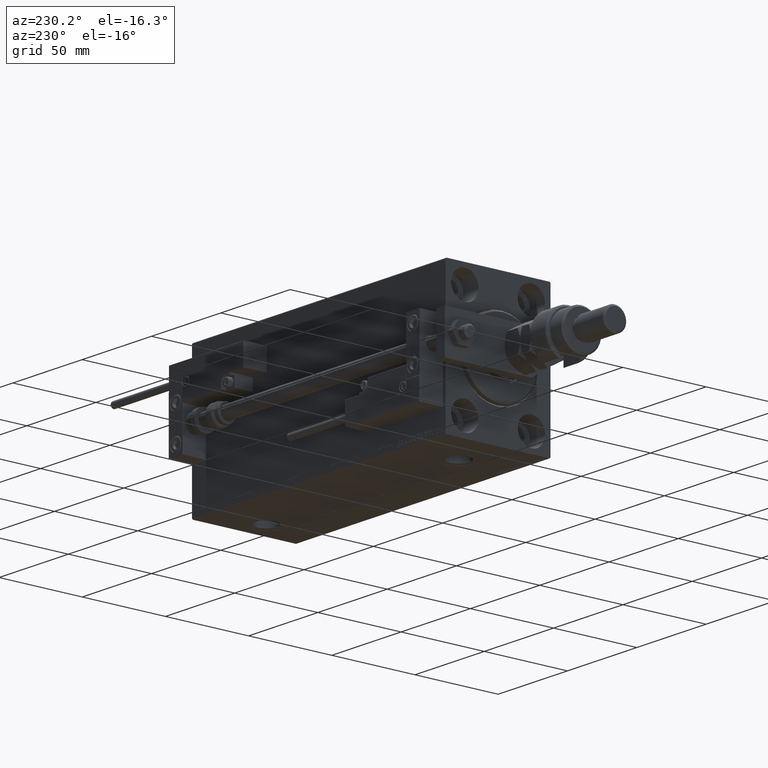
[diagram: clean part render]
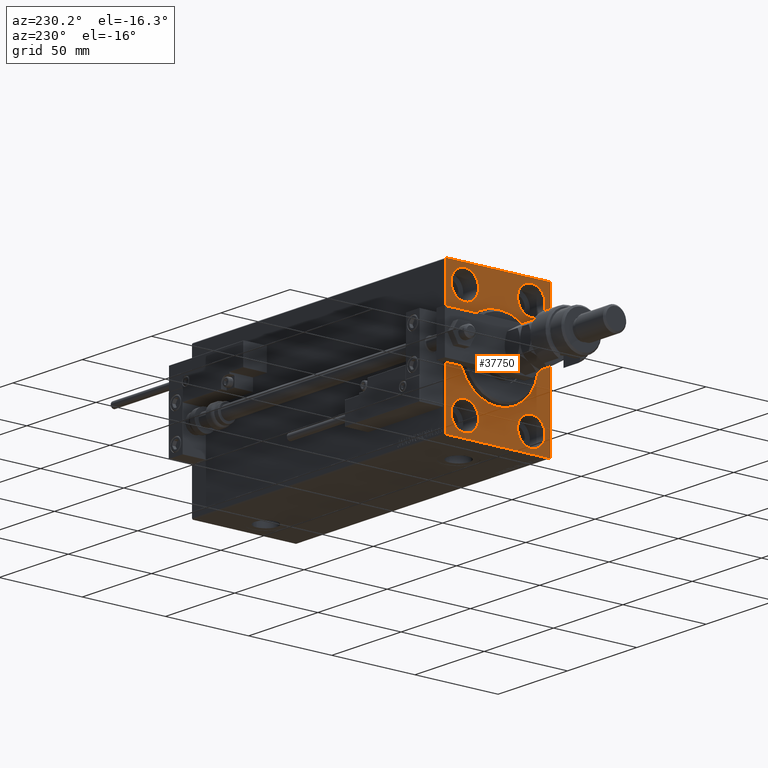
[diagram: same view with one face highlighted and labeled with its STEP entity id]
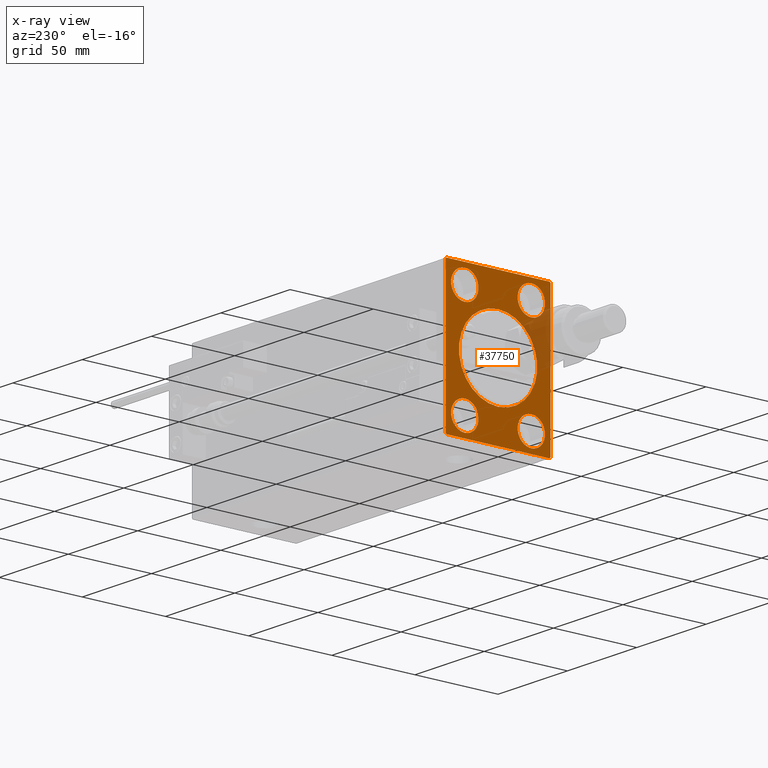
[diagram: x-ray of the same camera — body ghosted, the highlighted face saturated]
A machine part, auxiliary view. The second image highlights one B-rep face of the part: STEP entity #37750.
The next image is the same camera in x-ray: the body ghosted, the highlighted face saturated — about 10% of this face is hidden behind the body in this view.
In plain terms, the highlighted planar face has unit normal (1, 0, 0).
Its self-contained STEP definition (entity closure, byte-faithful):
#92 = VECTOR ( 'NONE', #40902, 1000.000000000000000 ) ;
#283 = VECTOR ( 'NONE', #37765, 1000.000000000000114 ) ;
#793 = ORIENTED_EDGE ( 'NONE', *, *, #31670, .F. ) ;
#910 = DIRECTION ( 'NONE',  ( -1.000000000000000000, 0.000000000000000000, 0.000000000000000000 ) ) ;
#949 = FACE_OUTER_BOUND ( 'NONE', #48714, .T. ) ;
#1063 = DIRECTION ( 'NONE',  ( 0.000000000000000000, 0.000000000000000000, -1.000000000000000000 ) ) ;
#1233 = DIRECTION ( 'NONE',  ( -0.000000000000000000, -0.7071067811865474617, 0.7071067811865474617 ) ) ;
#1382 = EDGE_CURVE ( 'NONE', #23386, #27148, #41391, .T. ) ;
#1387 = CARTESIAN_POINT ( 'NONE',  ( 0.000000000000000000, 20.00000000000000355, 31.50000000000000000 ) ) ;
#1488 = CARTESIAN_POINT ( 'NONE',  ( 0.000000000000000000, -19.99999999999999645, 39.74999999999999289 ) ) ;
#2268 = EDGE_LOOP ( 'NONE', ( #4423, #8108 ) ) ;
#2894 = DIRECTION ( 'NONE',  ( 0.000000000000000000, -1.632680918566406300E-16, 1.000000000000000000 ) ) ;
#3462 = CARTESIAN_POINT ( 'NONE',  ( 0.000000000000000000, -20.00000000000000355, -39.74999999999999289 ) ) ;
#3475 = EDGE_CURVE ( 'NONE', #37239, #19445, #28996, .T. ) ;
#4423 = ORIENTED_EDGE ( 'NONE', *, *, #53782, .F. ) ;
#4698 = ORIENTED_EDGE ( 'NONE', *, *, #44167, .T. ) ;
#5009 = CARTESIAN_POINT ( 'NONE',  ( 0.000000000000000000, -20.00000000000000355, -31.49999999999999289 ) ) ;
#5052 = FACE_BOUND ( 'NONE', #25854, .T. ) ;
#5221 = ORIENTED_EDGE ( 'NONE', *, *, #53576, .F. ) ;
#6408 = CARTESIAN_POINT ( 'NONE',  ( 0.000000000000000000, 31.00000000000001421, -42.50000000000000711 ) ) ;
#6584 = AXIS2_PLACEMENT_3D ( 'NONE', #46161, #51393, #25837 ) ;
#6972 = EDGE_CURVE ( 'NONE', #37239, #50808, #22954, .T. ) ;
#7772 = ORIENTED_EDGE ( 'NONE', *, *, #3475, .T. ) ;
#8108 = ORIENTED_EDGE ( 'NONE', *, *, #21048, .F. ) ;
#8224 = DIRECTION ( 'NONE',  ( 0.000000000000000000, 0.000000000000000000, 1.000000000000000000 ) ) ;
#8335 = AXIS2_PLACEMENT_3D ( 'NONE', #39364, #47342, #43491 ) ;
#8356 = VERTEX_POINT ( 'NONE', #19050 ) ;
#8367 = AXIS2_PLACEMENT_3D ( 'NONE', #44290, #23412, #19266 ) ;
#8652 = AXIS2_PLACEMENT_3D ( 'NONE', #14486, #9834, #1063 ) ;
#8916 = FACE_BOUND ( 'NONE', #34210, .T. ) ;
#9255 = CARTESIAN_POINT ( 'NONE',  ( 0.000000000000000000, -31.00000000000000000, -42.50000000000000711 ) ) ;
#9452 = EDGE_CURVE ( 'NONE', #37679, #17366, #13604, .T. ) ;
#9678 = DIRECTION ( 'NONE',  ( 0.000000000000000000, 0.000000000000000000, 1.000000000000000000 ) ) ;
#9834 = DIRECTION ( 'NONE',  ( 1.000000000000000000, 0.000000000000000000, 0.000000000000000000 ) ) ;
#10287 = ORIENTED_EDGE ( 'NONE', *, *, #26102, .F. ) ;
#10377 = CARTESIAN_POINT ( 'NONE',  ( 0.000000000000000000, 31.00000000000002842, 42.50000000000000711 ) ) ;
#11133 = EDGE_CURVE ( 'NONE', #51376, #36875, #34747, .T. ) ;
#11348 = VECTOR ( 'NONE', #40956, 1000.000000000000114 ) ;
#11449 = DIRECTION ( 'NONE',  ( 0.000000000000000000, -1.000000000000000000, -2.202823461557850341E-16 ) ) ;
#11648 = CARTESIAN_POINT ( 'NONE',  ( 0.000000000000000000, 20.00000000000000355, 31.50000000000000000 ) ) ;
#11698 = EDGE_CURVE ( 'NONE', #8356, #12197, #34677, .T. ) ;
#12059 = CARTESIAN_POINT ( 'NONE',  ( 0.000000000000000000, -31.50000000000000000, 41.99999999999996447 ) ) ;
#12197 = VERTEX_POINT ( 'NONE', #3462 ) ;
#12219 = ORIENTED_EDGE ( 'NONE', *, *, #27251, .T. ) ;
#13116 = DIRECTION ( 'NONE',  ( -1.000000000000000000, 0.000000000000000000, 0.000000000000000000 ) ) ;
#13297 = FACE_BOUND ( 'NONE', #2268, .T. ) ;
#13604 = CIRCLE ( 'NONE', #8367, 8.250000000000000000 ) ;
#13836 = DIRECTION ( 'NONE',  ( 0.000000000000000000, 0.000000000000000000, -1.000000000000000000 ) ) ;
#14486 = CARTESIAN_POINT ( 'NONE',  ( 0.000000000000000000, 0.000000000000000000, 0.000000000000000000 ) ) ;
#15526 = CARTESIAN_POINT ( 'NONE',  ( 0.000000000000000000, 19.99999999999999645, -39.74999999999999289 ) ) ;
#15605 = LINE ( 'NONE', #28557, #92 ) ;
#16879 = CARTESIAN_POINT ( 'NONE',  ( 0.000000000000000000, 20.00000000000000355, 39.74999999999999289 ) ) ;
#17366 = VERTEX_POINT ( 'NONE', #18724 ) ;
#17379 = EDGE_CURVE ( 'NONE', #27497, #35729, #32034, .T. ) ;
#17406 = EDGE_LOOP ( 'NONE', ( #28103, #35737 ) ) ;
#18046 = DIRECTION ( 'NONE',  ( -1.000000000000000000, 0.000000000000000000, 0.000000000000000000 ) ) ;
#18724 = CARTESIAN_POINT ( 'NONE',  ( 0.000000000000000000, 19.99999999999999645, -23.24999999999999289 ) ) ;
#18893 = CIRCLE ( 'NONE', #26811, 8.249999999999992895 ) ;
#18973 = CIRCLE ( 'NONE', #25915, 8.249999999999992895 ) ;
#19050 = CARTESIAN_POINT ( 'NONE',  ( 0.000000000000000000, -20.00000000000000355, -23.24999999999999289 ) ) ;
#19266 = DIRECTION ( 'NONE',  ( 0.000000000000000000, 0.000000000000000000, 1.000000000000000000 ) ) ;
#19390 = VERTEX_POINT ( 'NONE', #1488 ) ;
#19445 = VERTEX_POINT ( 'NONE', #6408 ) ;
#19901 = VERTEX_POINT ( 'NONE', #26910 ) ;
#21048 = EDGE_CURVE ( 'NONE', #34445, #19390, #18973, .T. ) ;
#21114 = CARTESIAN_POINT ( 'NONE',  ( 0.000000000000000000, -31.50000000000000000, 42.49999999999999289 ) ) ;
#21671 = CARTESIAN_POINT ( 'NONE',  ( 0.000000000000000000, 20.00000000000000355, 23.25000000000000355 ) ) ;
#22045 = AXIS2_PLACEMENT_3D ( 'NONE', #22173, #18046, #52135 ) ;
#22173 = CARTESIAN_POINT ( 'NONE',  ( 0.000000000000000000, -19.99999999999999645, 31.50000000000000000 ) ) ;
#22221 = EDGE_CURVE ( 'NONE', #27148, #23386, #18893, .T. ) ;
#22527 = DIRECTION ( 'NONE',  ( 0.000000000000000000, 0.000000000000000000, 1.000000000000000000 ) ) ;
#22903 = ORIENTED_EDGE ( 'NONE', *, *, #6972, .F. ) ;
#22954 = LINE ( 'NONE', #44386, #25826 ) ;
#23386 = VERTEX_POINT ( 'NONE', #16879 ) ;
#23412 = DIRECTION ( 'NONE',  ( -1.000000000000000000, 0.000000000000000000, 0.000000000000000000 ) ) ;
#23692 = ORIENTED_EDGE ( 'NONE', *, *, #35990, .F. ) ;
#24376 = VECTOR ( 'NONE', #27153, 1000.000000000000114 ) ;
#24422 = CIRCLE ( 'NONE', #8652, 23.49999999999996092 ) ;
#25826 = VECTOR ( 'NONE', #2894, 1000.000000000000000 ) ;
#25837 = DIRECTION ( 'NONE',  ( 0.000000000000000000, 0.000000000000000000, 1.000000000000000000 ) ) ;
#25854 = EDGE_LOOP ( 'NONE', ( #40762, #23692 ) ) ;
#25915 = AXIS2_PLACEMENT_3D ( 'NONE', #54378, #13116, #29100 ) ;
#26102 = EDGE_CURVE ( 'NONE', #17366, #37679, #31369, .T. ) ;
#26280 = EDGE_CURVE ( 'NONE', #47519, #36875, #33505, .T. ) ;
#26811 = AXIS2_PLACEMENT_3D ( 'NONE', #1387, #51683, #22527 ) ;
#26910 = CARTESIAN_POINT ( 'NONE',  ( 0.000000000000000000, 31.00000000000002842, 42.50000000000000711 ) ) ;
#27148 = VERTEX_POINT ( 'NONE', #21671 ) ;
#27153 = DIRECTION ( 'NONE',  ( -0.000000000000000000, 0.7071067811865474617, -0.7071067811865474617 ) ) ;
#27251 = EDGE_CURVE ( 'NONE', #19901, #50808, #39247, .T. ) ;
#27289 = CARTESIAN_POINT ( 'NONE',  ( 0.000000000000000000, -30.99999999999997158, 42.49999999999999289 ) ) ;
#27398 = LINE ( 'NONE', #44965, #41241 ) ;
#27497 = VERTEX_POINT ( 'NONE', #52111 ) ;
#28103 = ORIENTED_EDGE ( 'NONE', *, *, #1382, .F. ) ;
#28557 = CARTESIAN_POINT ( 'NONE',  ( 0.000000000000000000, -31.50000000000000000, -42.50000000000000711 ) ) ;
#28996 = LINE ( 'NONE', #49341, #283 ) ;
#29100 = DIRECTION ( 'NONE',  ( 0.000000000000000000, 0.000000000000000000, 1.000000000000000000 ) ) ;
#30504 = VECTOR ( 'NONE', #34579, 1000.000000000000000 ) ;
#30727 = CIRCLE ( 'NONE', #40355, 8.250000000000000000 ) ;
#31369 = CIRCLE ( 'NONE', #34875, 8.250000000000000000 ) ;
#31670 = EDGE_CURVE ( 'NONE', #19901, #40950, #27398, .T. ) ;
#32015 = VECTOR ( 'NONE', #1233, 1000.000000000000114 ) ;
#32034 = CIRCLE ( 'NONE', #8335, 23.49999999999996092 ) ;
#33293 = EDGE_LOOP ( 'NONE', ( #10287, #37441 ) ) ;
#33478 = CIRCLE ( 'NONE', #22045, 8.249999999999992895 ) ;
#33505 = LINE ( 'NONE', #21114, #30504 ) ;
#33657 = CARTESIAN_POINT ( 'NONE',  ( 0.000000000000000000, -31.50000000000000000, -42.00000000000000711 ) ) ;
#33935 = CARTESIAN_POINT ( 'NONE',  ( 0.000000000000000000, 0.000000000000000000, 0.000000000000000000 ) ) ;
#34210 = EDGE_LOOP ( 'NONE', ( #48778, #4698 ) ) ;
#34445 = VERTEX_POINT ( 'NONE', #51324 ) ;
#34579 = DIRECTION ( 'NONE',  ( 0.000000000000000000, 0.000000000000000000, -1.000000000000000000 ) ) ;
#34677 = CIRCLE ( 'NONE', #6584, 8.250000000000000000 ) ;
#34740 = PLANE ( 'NONE',  #36043 ) ;
#34747 = LINE ( 'NONE', #42446, #32015 ) ;
#34875 = AXIS2_PLACEMENT_3D ( 'NONE', #41207, #41746, #8224 ) ;
#35729 = VERTEX_POINT ( 'NONE', #39962 ) ;
#35737 = ORIENTED_EDGE ( 'NONE', *, *, #22221, .F. ) ;
#35990 = EDGE_CURVE ( 'NONE', #12197, #8356, #30727, .T. ) ;
#36043 = AXIS2_PLACEMENT_3D ( 'NONE', #33935, #51522, #13836 ) ;
#36574 = ORIENTED_EDGE ( 'NONE', *, *, #50107, .T. ) ;
#36875 = VERTEX_POINT ( 'NONE', #33657 ) ;
#37239 = VERTEX_POINT ( 'NONE', #49703 ) ;
#37441 = ORIENTED_EDGE ( 'NONE', *, *, #9452, .F. ) ;
#37486 = ORIENTED_EDGE ( 'NONE', *, *, #11133, .T. ) ;
#37679 = VERTEX_POINT ( 'NONE', #15526 ) ;
#37750 = ADVANCED_FACE ( 'NONE', ( #8916, #38852, #13297, #50439, #5052, #949 ), #34740, .F. ) ;
#37765 = DIRECTION ( 'NONE',  ( 0.000000000000000000, -0.7071067811865474617, -0.7071067811865474617 ) ) ;
#38852 = FACE_BOUND ( 'NONE', #33293, .T. ) ;
#39247 = LINE ( 'NONE', #10377, #24376 ) ;
#39364 = CARTESIAN_POINT ( 'NONE',  ( 0.000000000000000000, 0.000000000000000000, 0.000000000000000000 ) ) ;
#39866 = CARTESIAN_POINT ( 'NONE',  ( 0.000000000000000000, -31.50000000000000000, 41.99999999999996447 ) ) ;
#39962 = CARTESIAN_POINT ( 'NONE',  ( 0.000000000000000000, 2.877919977996275587E-15, -23.49999999999996092 ) ) ;
#40355 = AXIS2_PLACEMENT_3D ( 'NONE', #5009, #910, #9678 ) ;
#40762 = ORIENTED_EDGE ( 'NONE', *, *, #11698, .F. ) ;
#40902 = DIRECTION ( 'NONE',  ( 0.000000000000000000, 1.000000000000000000, 0.000000000000000000 ) ) ;
#40950 = VERTEX_POINT ( 'NONE', #27289 ) ;
#40956 = DIRECTION ( 'NONE',  ( -0.000000000000000000, 0.7071067811865474617, 0.7071067811865474617 ) ) ;
#41207 = CARTESIAN_POINT ( 'NONE',  ( 0.000000000000000000, 19.99999999999999645, -31.49999999999999289 ) ) ;
#41241 = VECTOR ( 'NONE', #11449, 1000.000000000000000 ) ;
#41391 = CIRCLE ( 'NONE', #46639, 8.249999999999992895 ) ;
#41746 = DIRECTION ( 'NONE',  ( -1.000000000000000000, 0.000000000000000000, 0.000000000000000000 ) ) ;
#42446 = CARTESIAN_POINT ( 'NONE',  ( 0.000000000000000000, -31.00000000000000000, -42.50000000000000711 ) ) ;
#43491 = DIRECTION ( 'NONE',  ( 0.000000000000000000, 0.000000000000000000, -1.000000000000000000 ) ) ;
#44167 = EDGE_CURVE ( 'NONE', #35729, #27497, #24422, .T. ) ;
#44290 = CARTESIAN_POINT ( 'NONE',  ( 0.000000000000000000, 19.99999999999999645, -31.49999999999999289 ) ) ;
#44386 = CARTESIAN_POINT ( 'NONE',  ( 0.000000000000000000, 31.50000000000001421, -42.50000000000000711 ) ) ;
#44965 = CARTESIAN_POINT ( 'NONE',  ( 0.000000000000000000, 31.50000000000000000, 42.50000000000000711 ) ) ;
#46161 = CARTESIAN_POINT ( 'NONE',  ( 0.000000000000000000, -20.00000000000000355, -31.49999999999999289 ) ) ;
#46287 = CARTESIAN_POINT ( 'NONE',  ( 0.000000000000000000, 31.50000000000000000, 42.00000000000003553 ) ) ;
#46639 = AXIS2_PLACEMENT_3D ( 'NONE', #11648, #48759, #49033 ) ;
#47076 = ORIENTED_EDGE ( 'NONE', *, *, #26280, .F. ) ;
#47342 = DIRECTION ( 'NONE',  ( 1.000000000000000000, 0.000000000000000000, 0.000000000000000000 ) ) ;
#47519 = VERTEX_POINT ( 'NONE', #12059 ) ;
#47572 = LINE ( 'NONE', #39866, #11348 ) ;
#48714 = EDGE_LOOP ( 'NONE', ( #47076, #36574, #793, #12219, #22903, #7772, #5221, #37486 ) ) ;
#48759 = DIRECTION ( 'NONE',  ( -1.000000000000000000, 0.000000000000000000, 0.000000000000000000 ) ) ;
#48778 = ORIENTED_EDGE ( 'NONE', *, *, #17379, .T. ) ;
#49033 = DIRECTION ( 'NONE',  ( 0.000000000000000000, 0.000000000000000000, 1.000000000000000000 ) ) ;
#49341 = CARTESIAN_POINT ( 'NONE',  ( 0.000000000000000000, 31.50000000000001421, -42.00000000000000711 ) ) ;
#49703 = CARTESIAN_POINT ( 'NONE',  ( 0.000000000000000000, 31.50000000000001421, -42.00000000000000711 ) ) ;
#50107 = EDGE_CURVE ( 'NONE', #47519, #40950, #47572, .T. ) ;
#50439 = FACE_BOUND ( 'NONE', #17406, .T. ) ;
#50808 = VERTEX_POINT ( 'NONE', #46287 ) ;
#51324 = CARTESIAN_POINT ( 'NONE',  ( 0.000000000000000000, -19.99999999999999645, 23.25000000000000355 ) ) ;
#51376 = VERTEX_POINT ( 'NONE', #9255 ) ;
#51393 = DIRECTION ( 'NONE',  ( -1.000000000000000000, 0.000000000000000000, 0.000000000000000000 ) ) ;
#51522 = DIRECTION ( 'NONE',  ( 1.000000000000000000, 0.000000000000000000, 0.000000000000000000 ) ) ;
#51683 = DIRECTION ( 'NONE',  ( -1.000000000000000000, 0.000000000000000000, 0.000000000000000000 ) ) ;
#52111 = CARTESIAN_POINT ( 'NONE',  ( 0.000000000000000000, 0.000000000000000000, 23.49999999999996092 ) ) ;
#52135 = DIRECTION ( 'NONE',  ( 0.000000000000000000, 0.000000000000000000, 1.000000000000000000 ) ) ;
#53576 = EDGE_CURVE ( 'NONE', #51376, #19445, #15605, .T. ) ;
#53782 = EDGE_CURVE ( 'NONE', #19390, #34445, #33478, .T. ) ;
#54378 = CARTESIAN_POINT ( 'NONE',  ( 0.000000000000000000, -19.99999999999999645, 31.50000000000000000 ) ) ;